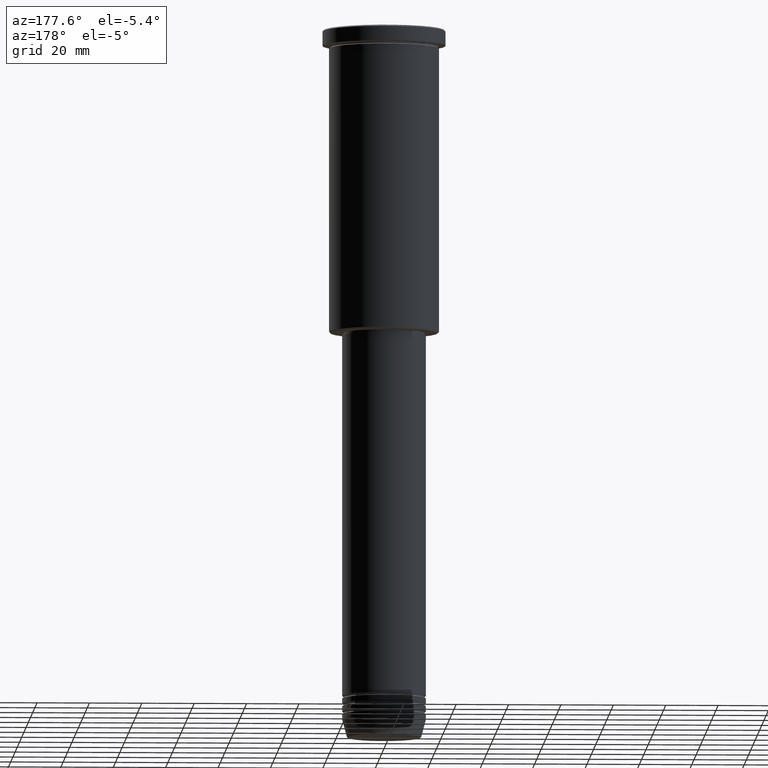
[diagram: clean part render]
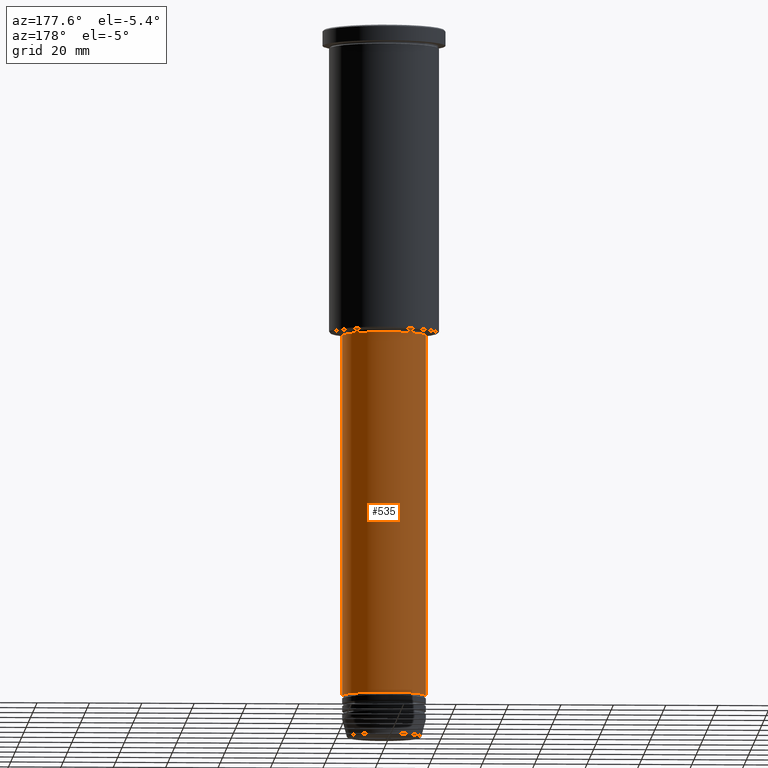
[diagram: same view with one face highlighted and labeled with its STEP entity id]
A machine part, auxiliary view. The second image highlights one B-rep face of the part: STEP entity #535.
In plain terms, the highlighted cylindrical surface (partial cylindrical patch) has radius 16 mm, axis along (-0, -0, 1).
Its self-contained STEP definition (entity closure, byte-faithful):
#12 = DIRECTION ( 'NONE',  ( -0.000000000000000000, -0.000000000000000000, 1.000000000000000000 ) ) ;
#24 = CIRCLE ( 'NONE', #311, 16.00000000000000000 ) ;
#56 = DIRECTION ( 'NONE',  ( -0.000000000000000000, -0.000000000000000000, 1.000000000000000000 ) ) ;
#71 = EDGE_CURVE ( 'NONE', #721, #821, #937, .T. ) ;
#82 = AXIS2_PLACEMENT_3D ( 'NONE', #464, #943, #385 ) ;
#128 = CARTESIAN_POINT ( 'NONE',  ( -16.00000000000000000, 1.959434878635765131E-15, -255.0000000000000000 ) ) ;
#158 = CIRCLE ( 'NONE', #82, 16.00000000000000000 ) ;
#163 = CARTESIAN_POINT ( 'NONE',  ( 0.000000000000000000, 0.000000000000000000, -117.0000000000000000 ) ) ;
#174 = EDGE_LOOP ( 'NONE', ( #1050, #398, #280, #917 ) ) ;
#249 = DIRECTION ( 'NONE',  ( -0.000000000000000000, -0.000000000000000000, 1.000000000000000000 ) ) ;
#250 = LINE ( 'NONE', #1063, #1106 ) ;
#252 = DIRECTION ( 'NONE',  ( 1.000000000000000000, 0.000000000000000000, 0.000000000000000000 ) ) ;
#274 = AXIS2_PLACEMENT_3D ( 'NONE', #287, #12, #300 ) ;
#280 = ORIENTED_EDGE ( 'NONE', *, *, #460, .F. ) ;
#287 = CARTESIAN_POINT ( 'NONE',  ( 0.000000000000000000, 0.000000000000000000, 0.000000000000000000 ) ) ;
#300 = DIRECTION ( 'NONE',  ( 1.000000000000000000, 0.000000000000000000, 0.000000000000000000 ) ) ;
#311 = AXIS2_PLACEMENT_3D ( 'NONE', #163, #249, #252 ) ;
#378 = CYLINDRICAL_SURFACE ( 'NONE', #274, 16.00000000000000000 ) ;
#385 = DIRECTION ( 'NONE',  ( 1.000000000000000000, 0.000000000000000000, 0.000000000000000000 ) ) ;
#398 = ORIENTED_EDGE ( 'NONE', *, *, #871, .T. ) ;
#447 = VERTEX_POINT ( 'NONE', #499 ) ;
#460 = EDGE_CURVE ( 'NONE', #821, #447, #24, .T. ) ;
#464 = CARTESIAN_POINT ( 'NONE',  ( 0.000000000000000000, 0.000000000000000000, -255.0000000000000000 ) ) ;
#499 = CARTESIAN_POINT ( 'NONE',  ( -16.00000000000000000, 1.959434878635765131E-15, -117.0000000000000000 ) ) ;
#518 = EDGE_CURVE ( 'NONE', #721, #719, #158, .T. ) ;
#535 = ADVANCED_FACE ( 'NONE', ( #1099 ), #378, .T. ) ;
#719 = VERTEX_POINT ( 'NONE', #128 ) ;
#721 = VERTEX_POINT ( 'NONE', #784 ) ;
#761 = CARTESIAN_POINT ( 'NONE',  ( 16.00000000000000000, 0.000000000000000000, 0.000000000000000000 ) ) ;
#784 = CARTESIAN_POINT ( 'NONE',  ( 16.00000000000000000, 0.000000000000000000, -255.0000000000000000 ) ) ;
#821 = VERTEX_POINT ( 'NONE', #1056 ) ;
#871 = EDGE_CURVE ( 'NONE', #719, #447, #250, .T. ) ;
#917 = ORIENTED_EDGE ( 'NONE', *, *, #71, .F. ) ;
#922 = VECTOR ( 'NONE', #1097, 1000.000000000000000 ) ;
#937 = LINE ( 'NONE', #761, #922 ) ;
#943 = DIRECTION ( 'NONE',  ( -0.000000000000000000, -0.000000000000000000, 1.000000000000000000 ) ) ;
#1050 = ORIENTED_EDGE ( 'NONE', *, *, #518, .T. ) ;
#1056 = CARTESIAN_POINT ( 'NONE',  ( 16.00000000000000000, 0.000000000000000000, -117.0000000000000000 ) ) ;
#1063 = CARTESIAN_POINT ( 'NONE',  ( -16.00000000000000000, 1.959434878635765131E-15, 0.000000000000000000 ) ) ;
#1097 = DIRECTION ( 'NONE',  ( -0.000000000000000000, -0.000000000000000000, 1.000000000000000000 ) ) ;
#1099 = FACE_OUTER_BOUND ( 'NONE', #174, .T. ) ;
#1106 = VECTOR ( 'NONE', #56, 1000.000000000000000 ) ;